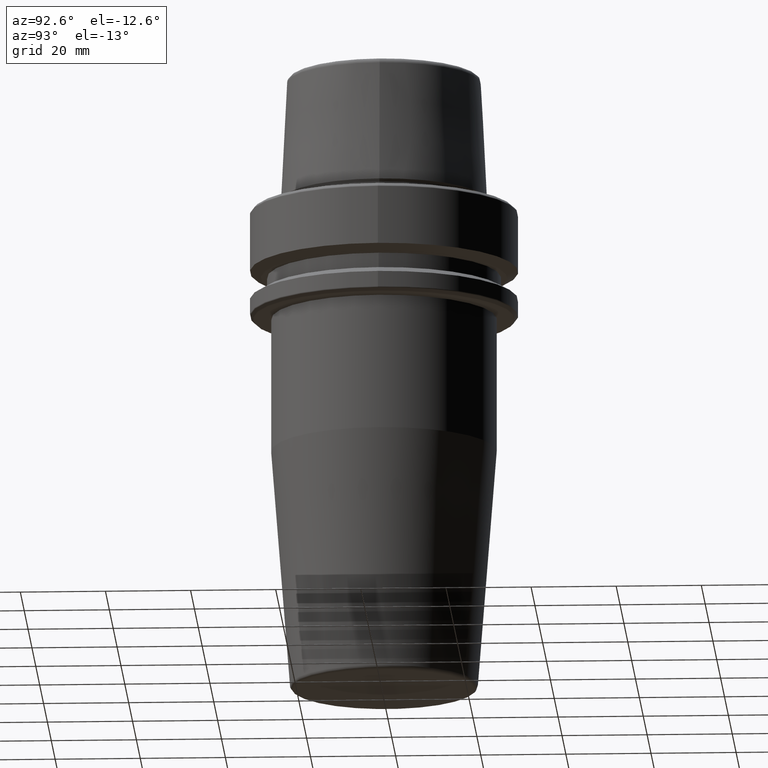
[diagram: clean part render]
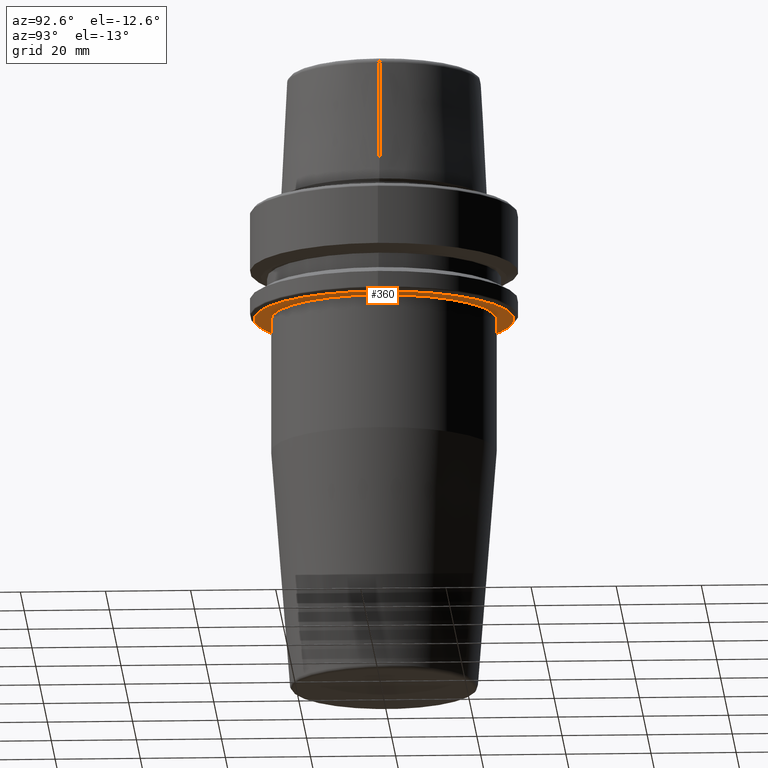
[diagram: same view with one face highlighted and labeled with its STEP entity id]
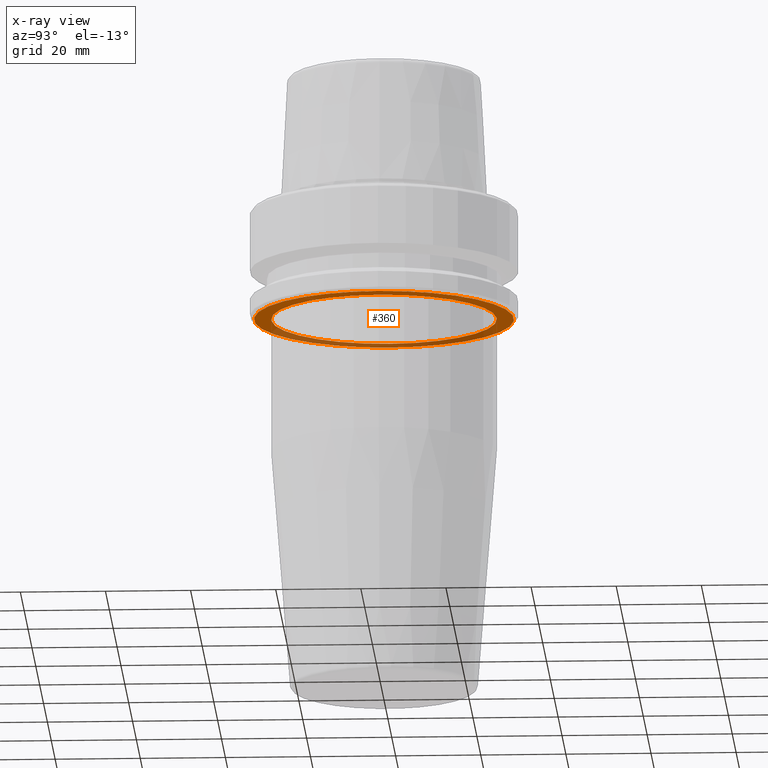
[diagram: x-ray of the same camera — body ghosted, the highlighted face saturated]
A machine part, auxiliary view. The second image highlights one B-rep face of the part: STEP entity #360.
The next image is the same camera in x-ray: the body ghosted, the highlighted face saturated — about 36% of this face is hidden behind the body in this view.
In plain terms, the highlighted planar face has unit normal (0, -0, 1).
Its self-contained STEP definition (entity closure, byte-faithful):
#72 = ORIENTED_EDGE ( 'NONE', *, *, #363, .F. ) ;
#73 = DIRECTION ( 'NONE',  ( 0.0000000000000000000, 0.0000000000000000000, -1.000000000000000000 ) ) ;
#75 = CIRCLE ( 'NONE', #972, 26.49999999999998900 ) ;
#81 = DIRECTION ( 'NONE',  ( 1.000000000000000000, 0.0000000000000000000, 0.0000000000000000000 ) ) ;
#113 = AXIS2_PLACEMENT_3D ( 'NONE', #634, #1223, #534 ) ;
#147 = CARTESIAN_POINT ( 'NONE',  ( -30.53431457505076100, 3.756694181974138600E-015, -26.00000000000001100 ) ) ;
#169 = DIRECTION ( 'NONE',  ( 1.000000000000000000, 0.0000000000000000000, 0.0000000000000000000 ) ) ;
#194 = CARTESIAN_POINT ( 'NONE',  ( 0.0000000000000000000, 7.703719777548943400E-031, -26.00000000000001100 ) ) ;
#228 = EDGE_LOOP ( 'NONE', ( #325, #72 ) ) ;
#324 = CARTESIAN_POINT ( 'NONE',  ( 0.0000000000000000000, 26.49999999999998900, -26.00000000000001100 ) ) ;
#325 = ORIENTED_EDGE ( 'NONE', *, *, #948, .F. ) ;
#328 = DIRECTION ( 'NONE',  ( 0.0000000000000000000, 0.0000000000000000000, -1.000000000000000000 ) ) ;
#338 = CIRCLE ( 'NONE', #776, 30.53431457505076100 ) ;
#360 = ADVANCED_FACE ( 'NONE', ( #619, #856 ), #662, .F. ) ;
#363 = EDGE_CURVE ( 'NONE', #1006, #1090, #338, .T. ) ;
#408 = EDGE_CURVE ( 'NONE', #416, #479, #75, .T. ) ;
#416 = VERTEX_POINT ( 'NONE', #324 ) ;
#463 = DIRECTION ( 'NONE',  ( 0.0000000000000000000, -0.0000000000000000000, 1.000000000000000000 ) ) ;
#470 = DIRECTION ( 'NONE',  ( -0.0000000000000000000, -0.0000000000000000000, 1.000000000000000000 ) ) ;
#479 = VERTEX_POINT ( 'NONE', #1083 ) ;
#534 = DIRECTION ( 'NONE',  ( 1.000000000000000000, 0.0000000000000000000, 0.0000000000000000000 ) ) ;
#599 = DIRECTION ( 'NONE',  ( 1.000000000000000000, 0.0000000000000000000, 0.0000000000000000000 ) ) ;
#619 = FACE_OUTER_BOUND ( 'NONE', #228, .T. ) ;
#622 = CARTESIAN_POINT ( 'NONE',  ( 0.0000000000000000000, 30.53431457505076100, -26.00000000000000700 ) ) ;
#634 = CARTESIAN_POINT ( 'NONE',  ( 0.0000000000000000000, 0.0000000000000000000, -26.00000000000001100 ) ) ;
#662 = PLANE ( 'NONE',  #842 ) ;
#776 = AXIS2_PLACEMENT_3D ( 'NONE', #1151, #470, #959 ) ;
#821 = EDGE_CURVE ( 'NONE', #479, #416, #1228, .T. ) ;
#842 = AXIS2_PLACEMENT_3D ( 'NONE', #622, #463, #81 ) ;
#856 = FACE_BOUND ( 'NONE', #1259, .T. ) ;
#912 = ORIENTED_EDGE ( 'NONE', *, *, #821, .F. ) ;
#948 = EDGE_CURVE ( 'NONE', #1090, #1006, #1103, .T. ) ;
#958 = AXIS2_PLACEMENT_3D ( 'NONE', #194, #328, #599 ) ;
#959 = DIRECTION ( 'NONE',  ( 1.000000000000000000, 0.0000000000000000000, 0.0000000000000000000 ) ) ;
#972 = AXIS2_PLACEMENT_3D ( 'NONE', #1044, #73, #169 ) ;
#1006 = VERTEX_POINT ( 'NONE', #147 ) ;
#1044 = CARTESIAN_POINT ( 'NONE',  ( 0.0000000000000000000, 7.703719777548943400E-031, -26.00000000000001100 ) ) ;
#1083 = CARTESIAN_POINT ( 'NONE',  ( 3.245314017740484600E-015, -26.49999999999998900, -26.00000000000001100 ) ) ;
#1090 = VERTEX_POINT ( 'NONE', #1207 ) ;
#1103 = CIRCLE ( 'NONE', #113, 30.53431457505076100 ) ;
#1151 = CARTESIAN_POINT ( 'NONE',  ( 0.0000000000000000000, 0.0000000000000000000, -26.00000000000001100 ) ) ;
#1164 = ORIENTED_EDGE ( 'NONE', *, *, #408, .F. ) ;
#1207 = CARTESIAN_POINT ( 'NONE',  ( 30.53431457505076100, 0.0000000000000000000, -26.00000000000001100 ) ) ;
#1223 = DIRECTION ( 'NONE',  ( -0.0000000000000000000, -0.0000000000000000000, 1.000000000000000000 ) ) ;
#1228 = CIRCLE ( 'NONE', #958, 26.49999999999998900 ) ;
#1259 = EDGE_LOOP ( 'NONE', ( #1164, #912 ) ) ;